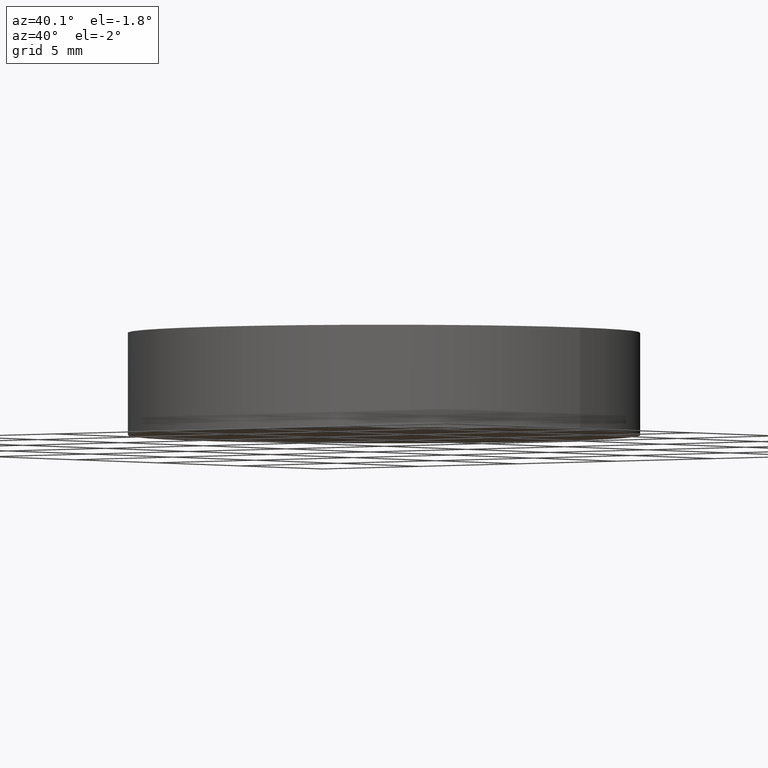
[diagram: clean part render]
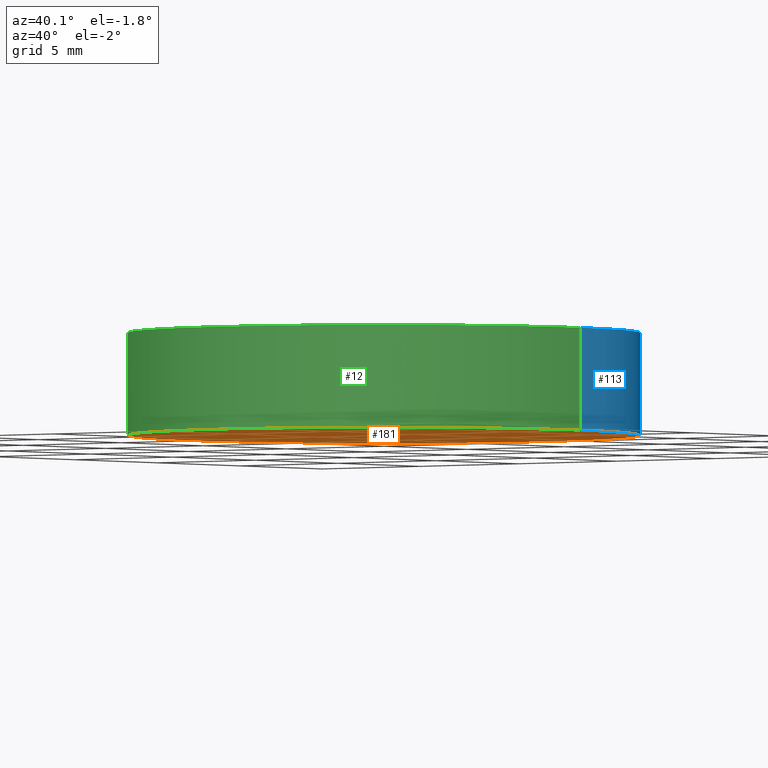
[diagram: same view with three faces highlighted in distinct colors, each labeled with its STEP entity id]
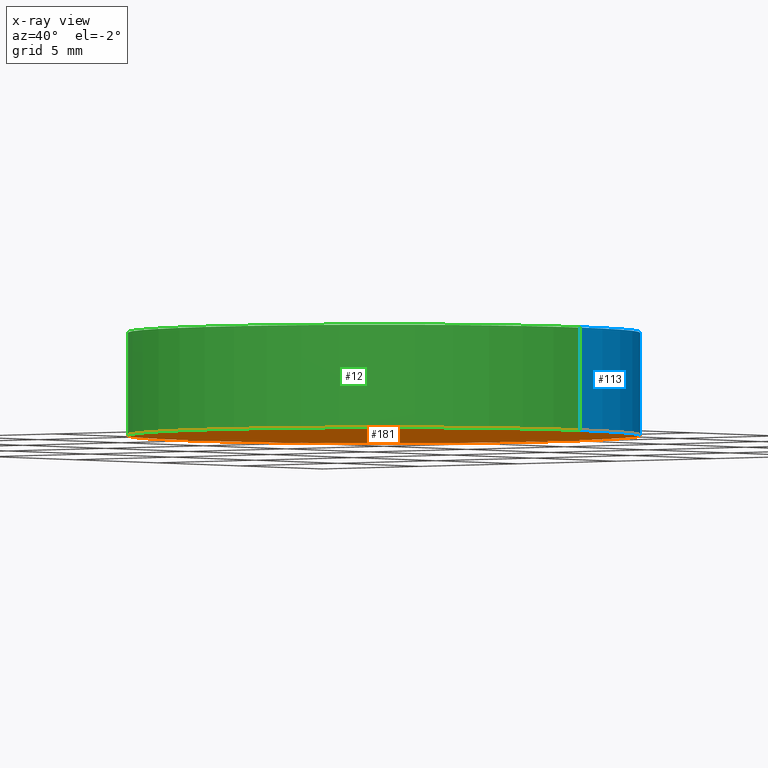
[diagram: x-ray of the same camera — body ghosted, the three highlighted faces saturated]
A machine part, auxiliary view with three faces highlighted in distinct colors.
The next image is the same camera in x-ray (body ghosted, the three faces saturated) — at least one of them is partly hidden behind the body in this view.
Their STEP definitions:

[orange] entity #181 — the highlighted planar face has unit normal (0, 0, 1).
#1 = CIRCLE ( 'NONE', #236, 10.00000000000000000 ) ;
#3 = CARTESIAN_POINT ( 'NONE',  ( 10.00000000000000000, 1.224646799147353300E-015, 0.0000000000000000000 ) ) ;
#5 = VERTEX_POINT ( 'NONE', #3 ) ;
#7 = DIRECTION ( 'NONE',  ( 1.000000000000000000, 0.0000000000000000000, 0.0000000000000000000 ) ) ;
#31 = CARTESIAN_POINT ( 'NONE',  ( 0.0000000000000000000, 0.0000000000000000000, 0.0000000000000000000 ) ) ;
#43 = CARTESIAN_POINT ( 'NONE',  ( -10.00000000000000000, 0.0000000000000000000, 0.0000000000000000000 ) ) ;
#59 = EDGE_LOOP ( 'NONE', ( #202, #190 ) ) ;
#62 = DIRECTION ( 'NONE',  ( 1.000000000000000000, 0.0000000000000000000, -0.0000000000000000000 ) ) ;
#71 = EDGE_CURVE ( 'NONE', #5, #229, #97, .T. ) ;
#81 = DIRECTION ( 'NONE',  ( 0.0000000000000000000, 0.0000000000000000000, 1.000000000000000000 ) ) ;
#97 = CIRCLE ( 'NONE', #233, 10.00000000000000000 ) ;
#103 = DIRECTION ( 'NONE',  ( 1.000000000000000000, 0.0000000000000000000, 0.0000000000000000000 ) ) ;
#108 = DIRECTION ( 'NONE',  ( 0.0000000000000000000, 0.0000000000000000000, 1.000000000000000000 ) ) ;
#175 = CARTESIAN_POINT ( 'NONE',  ( 0.0000000000000000000, 0.0000000000000000000, 0.0000000000000000000 ) ) ;
#181 = ADVANCED_FACE ( 'NONE', ( #215 ), #222, .F. ) ;
#190 = ORIENTED_EDGE ( 'NONE', *, *, #71, .F. ) ;
#200 = DIRECTION ( 'NONE',  ( 0.0000000000000000000, 0.0000000000000000000, 1.000000000000000000 ) ) ;
#202 = ORIENTED_EDGE ( 'NONE', *, *, #210, .F. ) ;
#210 = EDGE_CURVE ( 'NONE', #229, #5, #1, .T. ) ;
#215 = FACE_OUTER_BOUND ( 'NONE', #59, .T. ) ;
#222 = PLANE ( 'NONE',  #249 ) ;
#229 = VERTEX_POINT ( 'NONE', #43 ) ;
#233 = AXIS2_PLACEMENT_3D ( 'NONE', #175, #81, #103 ) ;
#236 = AXIS2_PLACEMENT_3D ( 'NONE', #31, #200, #7 ) ;
#242 = CARTESIAN_POINT ( 'NONE',  ( 0.0000000000000000000, 0.0000000000000000000, 0.0000000000000000000 ) ) ;
#249 = AXIS2_PLACEMENT_3D ( 'NONE', #242, #108, #62 ) ;

[blue] entity #113 — the highlighted cylindrical surface (partial cylindrical patch) has radius 10 mm, axis along (-0, -0, -1).
#2 = DIRECTION ( 'NONE',  ( -0.0000000000000000000, -0.0000000000000000000, -1.000000000000000000 ) ) ;
#3 = CARTESIAN_POINT ( 'NONE',  ( 10.00000000000000000, 1.224646799147353300E-015, 0.0000000000000000000 ) ) ;
#5 = VERTEX_POINT ( 'NONE', #3 ) ;
#18 = VECTOR ( 'NONE', #138, 1000.000000000000000 ) ;
#23 = DIRECTION ( 'NONE',  ( -0.0000000000000000000, -0.0000000000000000000, -1.000000000000000000 ) ) ;
#36 = ORIENTED_EDGE ( 'NONE', *, *, #119, .T. ) ;
#43 = CARTESIAN_POINT ( 'NONE',  ( -10.00000000000000000, 0.0000000000000000000, 0.0000000000000000000 ) ) ;
#44 = EDGE_CURVE ( 'NONE', #118, #229, #153, .T. ) ;
#48 = CARTESIAN_POINT ( 'NONE',  ( 0.0000000000000000000, 0.0000000000000000000, 4.000000000000000000 ) ) ;
#63 = DIRECTION ( 'NONE',  ( 0.0000000000000000000, 0.0000000000000000000, 1.000000000000000000 ) ) ;
#71 = EDGE_CURVE ( 'NONE', #5, #229, #97, .T. ) ;
#72 = AXIS2_PLACEMENT_3D ( 'NONE', #194, #23, #159 ) ;
#78 = CIRCLE ( 'NONE', #100, 10.00000000000000000 ) ;
#81 = DIRECTION ( 'NONE',  ( 0.0000000000000000000, 0.0000000000000000000, 1.000000000000000000 ) ) ;
#97 = CIRCLE ( 'NONE', #233, 10.00000000000000000 ) ;
#99 = CARTESIAN_POINT ( 'NONE',  ( -10.00000000000000000, 0.0000000000000000000, 4.000000000000000000 ) ) ;
#100 = AXIS2_PLACEMENT_3D ( 'NONE', #48, #63, #163 ) ;
#102 = ORIENTED_EDGE ( 'NONE', *, *, #71, .T. ) ;
#103 = DIRECTION ( 'NONE',  ( 1.000000000000000000, 0.0000000000000000000, 0.0000000000000000000 ) ) ;
#113 = ADVANCED_FACE ( 'NONE', ( #170 ), #132, .T. ) ;
#115 = ORIENTED_EDGE ( 'NONE', *, *, #44, .F. ) ;
#118 = VERTEX_POINT ( 'NONE', #214 ) ;
#119 = EDGE_CURVE ( 'NONE', #208, #5, #148, .T. ) ;
#132 = CYLINDRICAL_SURFACE ( 'NONE', #72, 10.00000000000000000 ) ;
#133 = EDGE_LOOP ( 'NONE', ( #162, #36, #102, #115 ) ) ;
#138 = DIRECTION ( 'NONE',  ( -0.0000000000000000000, -0.0000000000000000000, -1.000000000000000000 ) ) ;
#148 = LINE ( 'NONE', #196, #18 ) ;
#153 = LINE ( 'NONE', #99, #252 ) ;
#159 = DIRECTION ( 'NONE',  ( -1.000000000000000000, 0.0000000000000000000, 0.0000000000000000000 ) ) ;
#162 = ORIENTED_EDGE ( 'NONE', *, *, #186, .F. ) ;
#163 = DIRECTION ( 'NONE',  ( 1.000000000000000000, 0.0000000000000000000, 0.0000000000000000000 ) ) ;
#170 = FACE_OUTER_BOUND ( 'NONE', #133, .T. ) ;
#175 = CARTESIAN_POINT ( 'NONE',  ( 0.0000000000000000000, 0.0000000000000000000, 0.0000000000000000000 ) ) ;
#186 = EDGE_CURVE ( 'NONE', #208, #118, #78, .T. ) ;
#194 = CARTESIAN_POINT ( 'NONE',  ( 0.0000000000000000000, 0.0000000000000000000, 4.000000000000000000 ) ) ;
#196 = CARTESIAN_POINT ( 'NONE',  ( 10.00000000000000000, 1.224646799147353300E-015, 4.000000000000000000 ) ) ;
#208 = VERTEX_POINT ( 'NONE', #220 ) ;
#214 = CARTESIAN_POINT ( 'NONE',  ( -10.00000000000000000, 0.0000000000000000000, 4.000000000000000000 ) ) ;
#220 = CARTESIAN_POINT ( 'NONE',  ( 10.00000000000000000, 1.224646799147353300E-015, 4.000000000000000000 ) ) ;
#229 = VERTEX_POINT ( 'NONE', #43 ) ;
#233 = AXIS2_PLACEMENT_3D ( 'NONE', #175, #81, #103 ) ;
#252 = VECTOR ( 'NONE', #2, 1000.000000000000000 ) ;

[green] entity #12 — the highlighted cylindrical surface (partial cylindrical patch) has radius 10 mm, axis along (-0, -0, -1).
#1 = CIRCLE ( 'NONE', #236, 10.00000000000000000 ) ;
#2 = DIRECTION ( 'NONE',  ( -0.0000000000000000000, -0.0000000000000000000, -1.000000000000000000 ) ) ;
#3 = CARTESIAN_POINT ( 'NONE',  ( 10.00000000000000000, 1.224646799147353300E-015, 0.0000000000000000000 ) ) ;
#5 = VERTEX_POINT ( 'NONE', #3 ) ;
#7 = DIRECTION ( 'NONE',  ( 1.000000000000000000, 0.0000000000000000000, 0.0000000000000000000 ) ) ;
#12 = ADVANCED_FACE ( 'NONE', ( #128 ), #167, .T. ) ;
#18 = VECTOR ( 'NONE', #138, 1000.000000000000000 ) ;
#21 = CIRCLE ( 'NONE', #32, 10.00000000000000000 ) ;
#31 = CARTESIAN_POINT ( 'NONE',  ( 0.0000000000000000000, 0.0000000000000000000, 0.0000000000000000000 ) ) ;
#32 = AXIS2_PLACEMENT_3D ( 'NONE', #199, #64, #86 ) ;
#42 = ORIENTED_EDGE ( 'NONE', *, *, #119, .F. ) ;
#43 = CARTESIAN_POINT ( 'NONE',  ( -10.00000000000000000, 0.0000000000000000000, 0.0000000000000000000 ) ) ;
#44 = EDGE_CURVE ( 'NONE', #118, #229, #153, .T. ) ;
#64 = DIRECTION ( 'NONE',  ( 0.0000000000000000000, 0.0000000000000000000, 1.000000000000000000 ) ) ;
#86 = DIRECTION ( 'NONE',  ( 1.000000000000000000, 0.0000000000000000000, 0.0000000000000000000 ) ) ;
#90 = ORIENTED_EDGE ( 'NONE', *, *, #44, .T. ) ;
#99 = CARTESIAN_POINT ( 'NONE',  ( -10.00000000000000000, 0.0000000000000000000, 4.000000000000000000 ) ) ;
#118 = VERTEX_POINT ( 'NONE', #214 ) ;
#119 = EDGE_CURVE ( 'NONE', #208, #5, #148, .T. ) ;
#121 = DIRECTION ( 'NONE',  ( -1.000000000000000000, 0.0000000000000000000, 0.0000000000000000000 ) ) ;
#128 = FACE_OUTER_BOUND ( 'NONE', #156, .T. ) ;
#137 = ORIENTED_EDGE ( 'NONE', *, *, #143, .F. ) ;
#138 = DIRECTION ( 'NONE',  ( -0.0000000000000000000, -0.0000000000000000000, -1.000000000000000000 ) ) ;
#143 = EDGE_CURVE ( 'NONE', #118, #208, #21, .T. ) ;
#148 = LINE ( 'NONE', #196, #18 ) ;
#151 = ORIENTED_EDGE ( 'NONE', *, *, #210, .T. ) ;
#153 = LINE ( 'NONE', #99, #252 ) ;
#156 = EDGE_LOOP ( 'NONE', ( #42, #137, #90, #151 ) ) ;
#161 = CARTESIAN_POINT ( 'NONE',  ( 0.0000000000000000000, 0.0000000000000000000, 4.000000000000000000 ) ) ;
#167 = CYLINDRICAL_SURFACE ( 'NONE', #245, 10.00000000000000000 ) ;
#196 = CARTESIAN_POINT ( 'NONE',  ( 10.00000000000000000, 1.224646799147353300E-015, 4.000000000000000000 ) ) ;
#199 = CARTESIAN_POINT ( 'NONE',  ( 0.0000000000000000000, 0.0000000000000000000, 4.000000000000000000 ) ) ;
#200 = DIRECTION ( 'NONE',  ( 0.0000000000000000000, 0.0000000000000000000, 1.000000000000000000 ) ) ;
#208 = VERTEX_POINT ( 'NONE', #220 ) ;
#210 = EDGE_CURVE ( 'NONE', #229, #5, #1, .T. ) ;
#213 = DIRECTION ( 'NONE',  ( -0.0000000000000000000, -0.0000000000000000000, -1.000000000000000000 ) ) ;
#214 = CARTESIAN_POINT ( 'NONE',  ( -10.00000000000000000, 0.0000000000000000000, 4.000000000000000000 ) ) ;
#220 = CARTESIAN_POINT ( 'NONE',  ( 10.00000000000000000, 1.224646799147353300E-015, 4.000000000000000000 ) ) ;
#229 = VERTEX_POINT ( 'NONE', #43 ) ;
#236 = AXIS2_PLACEMENT_3D ( 'NONE', #31, #200, #7 ) ;
#245 = AXIS2_PLACEMENT_3D ( 'NONE', #161, #213, #121 ) ;
#252 = VECTOR ( 'NONE', #2, 1000.000000000000000 ) ;